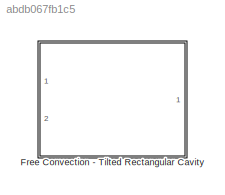
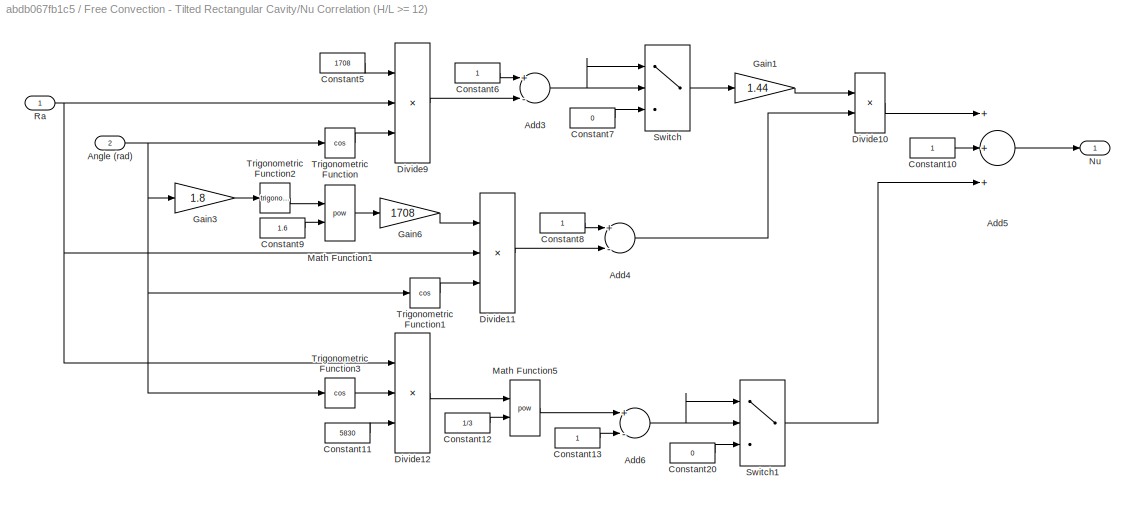
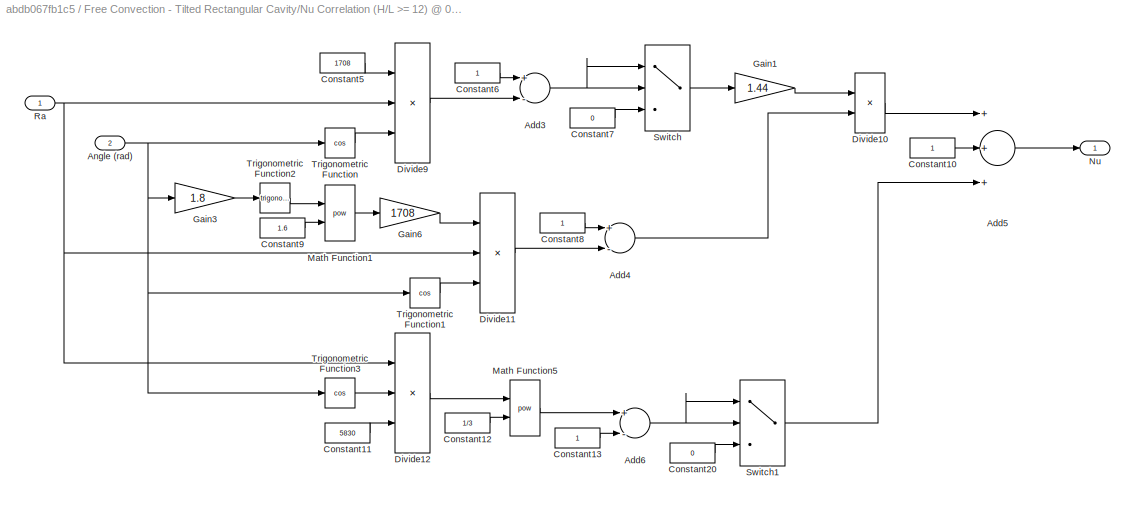
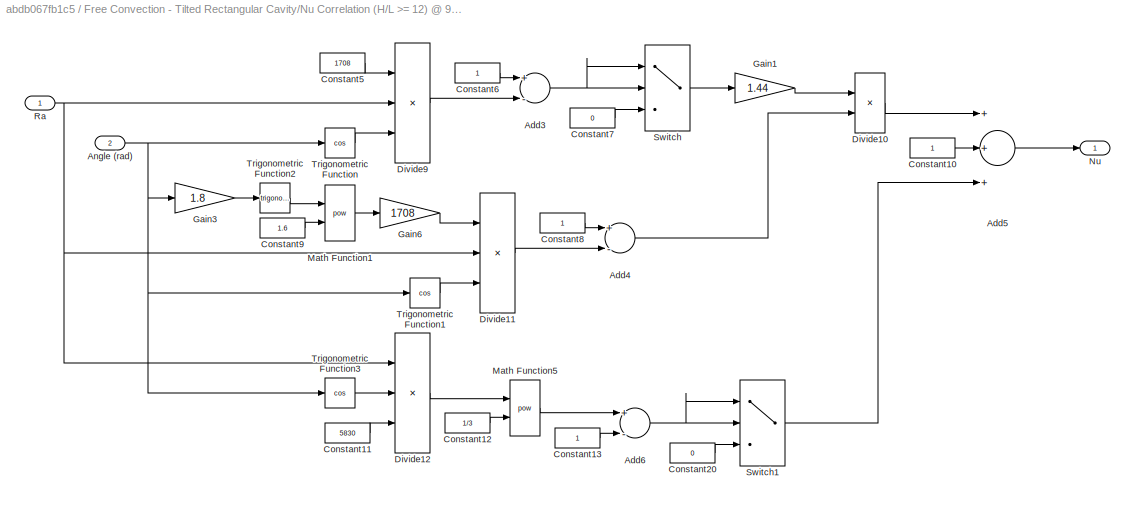
MODEL slx_abdb067fb1c5
KIND library
CONFIG AbsTol = auto
CONFIG FixedStep = auto
CONFIG MaxStep = auto
CONFIG MinStep = auto
CONFIG RelTol = 1e-3
CONFIG SampleTimeConstraint = Unconstrained
CONFIG Solver = ode45
CONFIG SolverMode = Auto
CONFIG SolverName = ode45
CONFIG StartTime = 0.0
CONFIG StopTime = 10.0
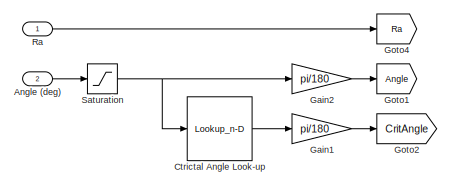
[diagram: Free Convection - Tilted Rectangular Cavity - part 1/2, top left region]
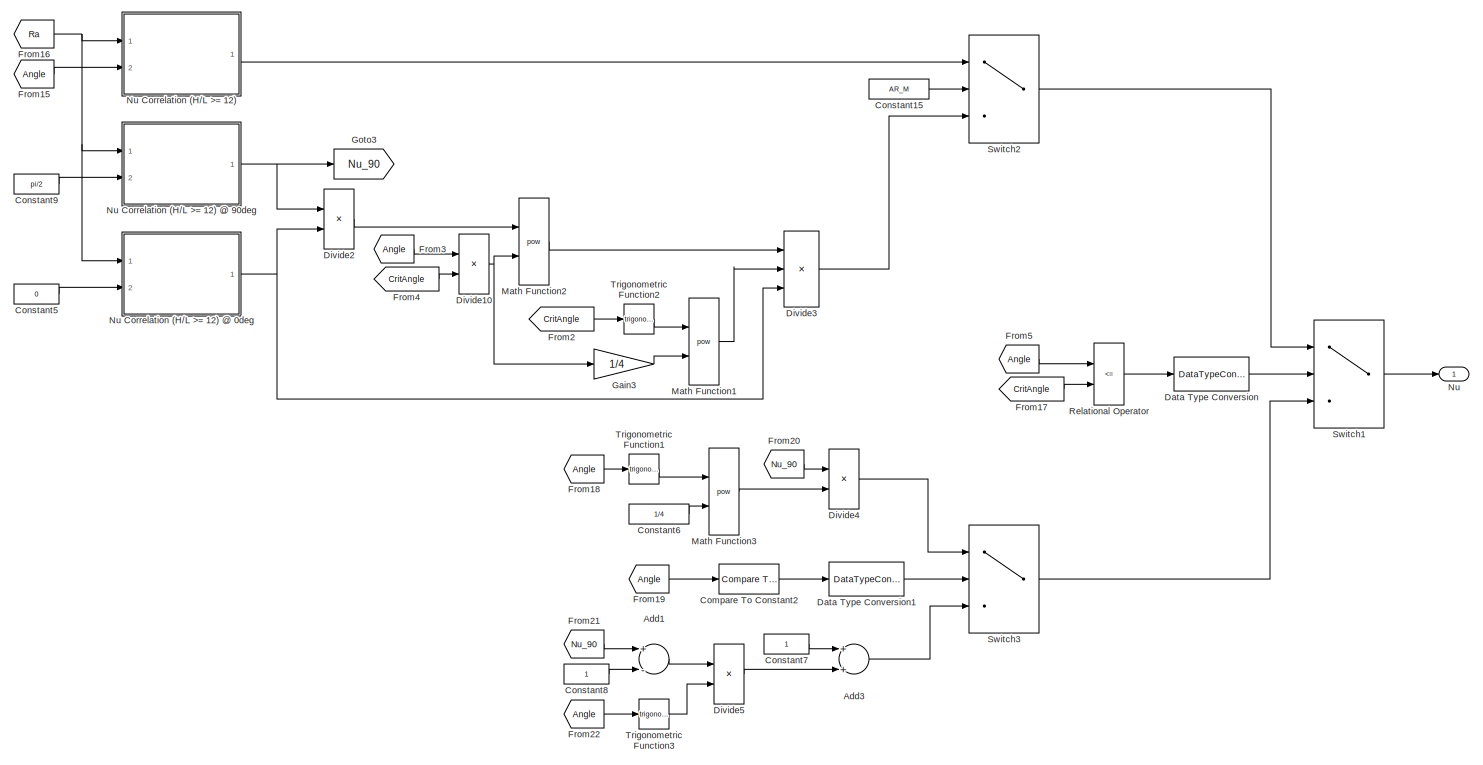
[diagram: Free Convection - Tilted Rectangular Cavity - part 2/2, most of the canvas]
BLOCK [SubSystem] Free Convection - Tilted Rectangular Cavity
  Ports = [2, 1]
  RequestExecContextInheritance = off
BLOCK [Sum] Free Convection - Tilted Rectangular Cavity/Add1
  InputSameDT = off
  Inputs = +-
  OutDataTypeStr = Inherit: Inherit via internal rule
  Ports = [2, 1]
  SaturateOnIntegerOverflow = off
BLOCK [Sum] Free Convection - Tilted Rectangular Cavity/Add3
  InputSameDT = off
  OutDataTypeStr = Inherit: Inherit via internal rule
  Ports = [2, 1]
  SaturateOnIntegerOverflow = off
BLOCK [Inport] Free Convection - Tilted Rectangular Cavity/Angle (deg)
  IconDisplay = Port number
  Port = 2
BLOCK [Reference] Free Convection - Tilted Rectangular Cavity/Compare To Constant2  REF=simulink/Logic and Bit
Operations/Compare
To Constant
  OutDataTypeStr = boolean
  Ports = [1, 1]
  SourceBlock = simulink/Logic and Bit\nOperations/Compare\nTo Constant
  SourceType = Compare To Constant
  ZeroCross = on
  const = 90*pi/180
  relop = <=
BLOCK [Constant] Free Convection - Tilted Rectangular Cavity/Constant15
  Value = AR_M
BLOCK [Constant] Free Convection - Tilted Rectangular Cavity/Constant5
  Value = 0
BLOCK [Constant] Free Convection - Tilted Rectangular Cavity/Constant6
  Value = 1/4
BLOCK [Constant] Free Convection - Tilted Rectangular Cavity/Constant7
BLOCK [Constant] Free Convection - Tilted Rectangular Cavity/Constant8
BLOCK [Constant] Free Convection - Tilted Rectangular Cavity/Constant9
  Value = pi/2
BLOCK [Lookup_n-D] Free Convection - Tilted Rectangular Cavity/Ctrictal Angle Look-up
  BreakpointsForDimension1 = [1 3 6 12 15 20]
  InternalRulePriority = Speed
  NumberOfTableDimensions = 1
  Ports = [1, 1]
  RndMeth = Simplest
  Table = [25 53 60 67 70 70]
BLOCK [DataTypeConversion] Free Convection - Tilted Rectangular Cavity/Data Type Conversion
  OutDataTypeStr = double
  RndMeth = Floor
  SaturateOnIntegerOverflow = off
BLOCK [DataTypeConversion] Free Convection - Tilted Rectangular Cavity/Data Type Conversion1
  OutDataTypeStr = double
  RndMeth = Floor
  SaturateOnIntegerOverflow = off
BLOCK [Product] Free Convection - Tilted Rectangular Cavity/Divide10
  InputSameDT = off
  Inputs = */
  OutDataTypeStr = Inherit: Inherit via internal rule
  Ports = [2, 1]
  RndMeth = Floor
  SaturateOnIntegerOverflow = off
BLOCK [Product] Free Convection - Tilted Rectangular Cavity/Divide2
  InputSameDT = off
  Inputs = */
  OutDataTypeStr = Inherit: Inherit via internal rule
  Ports = [2, 1]
  RndMeth = Floor
  SaturateOnIntegerOverflow = off
BLOCK [Product] Free Convection - Tilted Rectangular Cavity/Divide3
  InputSameDT = off
  Inputs = ***
  OutDataTypeStr = Inherit: Inherit via internal rule
  Ports = [3, 1]
  RndMeth = Floor
  SaturateOnIntegerOverflow = off
BLOCK [Product] Free Convection - Tilted Rectangular Cavity/Divide4
  InputSameDT = off
  Inputs = **
  OutDataTypeStr = Inherit: Inherit via internal rule
  Ports = [2, 1]
  RndMeth = Floor
  SaturateOnIntegerOverflow = off
BLOCK [Product] Free Convection - Tilted Rectangular Cavity/Divide5
  InputSameDT = off
  Inputs = **
  OutDataTypeStr = Inherit: Inherit via internal rule
  Ports = [2, 1]
  RndMeth = Floor
  SaturateOnIntegerOverflow = off
BLOCK [From] Free Convection - Tilted Rectangular Cavity/From15
  GotoTag = Angle
BLOCK [From] Free Convection - Tilted Rectangular Cavity/From16
  GotoTag = Ra
BLOCK [From] Free Convection - Tilted Rectangular Cavity/From17
  GotoTag = CritAngle
BLOCK [From] Free Convection - Tilted Rectangular Cavity/From18
  GotoTag = Angle
BLOCK [From] Free Convection - Tilted Rectangular Cavity/From19
  GotoTag = Angle
BLOCK [From] Free Convection - Tilted Rectangular Cavity/From2
  GotoTag = CritAngle
BLOCK [From] Free Convection - Tilted Rectangular Cavity/From20
  GotoTag = Nu_90
BLOCK [From] Free Convection - Tilted Rectangular Cavity/From21
  GotoTag = Nu_90
BLOCK [From] Free Convection - Tilted Rectangular Cavity/From22
  GotoTag = Angle
BLOCK [From] Free Convection - Tilted Rectangular Cavity/From3
  GotoTag = Angle
BLOCK [From] Free Convection - Tilted Rectangular Cavity/From4
  GotoTag = CritAngle
BLOCK [From] Free Convection - Tilted Rectangular Cavity/From5
  GotoTag = Angle
BLOCK [Gain] Free Convection - Tilted Rectangular Cavity/Gain1
  Gain = pi/180
  OutDataTypeStr = Inherit: Inherit via internal rule
  ParamDataTypeStr = Inherit: Inherit via internal rule
  SaturateOnIntegerOverflow = off
BLOCK [Gain] Free Convection - Tilted Rectangular Cavity/Gain2
  Gain = pi/180
  OutDataTypeStr = Inherit: Inherit via internal rule
  ParamDataTypeStr = Inherit: Inherit via internal rule
  SaturateOnIntegerOverflow = off
BLOCK [Gain] Free Convection - Tilted Rectangular Cavity/Gain3
  Gain = 1/4
  OutDataTypeStr = Inherit: Inherit via internal rule
  ParamDataTypeStr = Inherit: Inherit via internal rule
  SaturateOnIntegerOverflow = off
BLOCK [Goto] Free Convection - Tilted Rectangular Cavity/Goto1
  GotoTag = Angle
BLOCK [Goto] Free Convection - Tilted Rectangular Cavity/Goto2
  GotoTag = CritAngle
BLOCK [Goto] Free Convection - Tilted Rectangular Cavity/Goto3
  GotoTag = Nu_90
BLOCK [Goto] Free Convection - Tilted Rectangular Cavity/Goto4
  GotoTag = Ra
BLOCK [Math] Free Convection - Tilted Rectangular Cavity/Math Function1
  Operator = pow
  Ports = [2, 1]
BLOCK [Math] Free Convection - Tilted Rectangular Cavity/Math Function2
  Operator = pow
  Ports = [2, 1]
BLOCK [Math] Free Convection - Tilted Rectangular Cavity/Math Function3
  Operator = pow
  Ports = [2, 1]
BLOCK [Outport] Free Convection - Tilted Rectangular Cavity/Nu
  IconDisplay = Port number
BLOCK [SubSystem] Free Convection - Tilted Rectangular Cavity/Nu Correlation (H//L >= 12)
  Ports = [2, 1]
  RequestExecContextInheritance = off
BLOCK [SubSystem] Free Convection - Tilted Rectangular Cavity/Nu Correlation (H//L >= 12) @ 0deg
  Ports = [2, 1]
  RequestExecContextInheritance = off
BLOCK [Sum] Free Convection - Tilted Rectangular Cavity/Nu Correlation (H//L >= 12) @ 0deg/Add3
  InputSameDT = off
  Inputs = +-
  OutDataTypeStr = Inherit: Inherit via internal rule
  Ports = [2, 1]
  SaturateOnIntegerOverflow = off
BLOCK [Sum] Free Convection - Tilted Rectangular Cavity/Nu Correlation (H//L >= 12) @ 0deg/Add4
  InputSameDT = off
  Inputs = +-
  OutDataTypeStr = Inherit: Inherit via internal rule
  Ports = [2, 1]
  SaturateOnIntegerOverflow = off
BLOCK [Sum] Free Convection - Tilted Rectangular Cavity/Nu Correlation (H//L >= 12) @ 0deg/Add5
  InputSameDT = off
  Inputs = +++
  OutDataTypeStr = Inherit: Inherit via internal rule
  Ports = [3, 1]
  SaturateOnIntegerOverflow = off
BLOCK [Sum] Free Convection - Tilted Rectangular Cavity/Nu Correlation (H//L >= 12) @ 0deg/Add6
  InputSameDT = off
  Inputs = +-
  OutDataTypeStr = Inherit: Inherit via internal rule
  Ports = [2, 1]
  SaturateOnIntegerOverflow = off
BLOCK [Inport] Free Convection - Tilted Rectangular Cavity/Nu Correlation (H//L >= 12) @ 0deg/Angle (rad)
  IconDisplay = Port number
  Port = 2
BLOCK [Constant] Free Convection - Tilted Rectangular Cavity/Nu Correlation (H//L >= 12) @ 0deg/Constant10
BLOCK [Constant] Free Convection - Tilted Rectangular Cavity/Nu Correlation (H//L >= 12) @ 0deg/Constant11
  Value = 5830
BLOCK [Constant] Free Convection - Tilted Rectangular Cavity/Nu Correlation (H//L >= 12) @ 0deg/Constant12
  Value = 1/3
BLOCK [Constant] Free Convection - Tilted Rectangular Cavity/Nu Correlation (H//L >= 12) @ 0deg/Constant13
BLOCK [Constant] Free Convection - Tilted Rectangular Cavity/Nu Correlation (H//L >= 12) @ 0deg/Constant20
  Value = 0
BLOCK [Constant] Free Convection - Tilted Rectangular Cavity/Nu Correlation (H//L >= 12) @ 0deg/Constant5
  Value = 1708
BLOCK [Constant] Free Convection - Tilted Rectangular Cavity/Nu Correlation (H//L >= 12) @ 0deg/Constant6
BLOCK [Constant] Free Convection - Tilted Rectangular Cavity/Nu Correlation (H//L >= 12) @ 0deg/Constant7
  Value = 0
BLOCK [Constant] Free Convection - Tilted Rectangular Cavity/Nu Correlation (H//L >= 12) @ 0deg/Constant8
BLOCK [Constant] Free Convection - Tilted Rectangular Cavity/Nu Correlation (H//L >= 12) @ 0deg/Constant9
  Value = 1.6
BLOCK [Product] Free Convection - Tilted Rectangular Cavity/Nu Correlation (H//L >= 12) @ 0deg/Divide10
  InputSameDT = off
  Inputs = **
  OutDataTypeStr = Inherit: Inherit via internal rule
  Ports = [2, 1]
  RndMeth = Floor
  SaturateOnIntegerOverflow = off
BLOCK [Product] Free Convection - Tilted Rectangular Cavity/Nu Correlation (H//L >= 12) @ 0deg/Divide11
  InputSameDT = off
  Inputs = *//
  OutDataTypeStr = Inherit: Inherit via internal rule
  Ports = [3, 1]
  RndMeth = Floor
  SaturateOnIntegerOverflow = off
BLOCK [Product] Free Convection - Tilted Rectangular Cavity/Nu Correlation (H//L >= 12) @ 0deg/Divide12
  InputSameDT = off
  Inputs = **/
  OutDataTypeStr = Inherit: Inherit via internal rule
  Ports = [3, 1]
  RndMeth = Floor
  SaturateOnIntegerOverflow = off
BLOCK [Product] Free Convection - Tilted Rectangular Cavity/Nu Correlation (H//L >= 12) @ 0deg/Divide9
  InputSameDT = off
  Inputs = *//
  OutDataTypeStr = Inherit: Inherit via internal rule
  Ports = [3, 1]
  RndMeth = Floor
  SaturateOnIntegerOverflow = off
BLOCK [Gain] Free Convection - Tilted Rectangular Cavity/Nu Correlation (H//L >= 12) @ 0deg/Gain1
  Gain = 1.44
  OutDataTypeStr = Inherit: Inherit via internal rule
  ParamDataTypeStr = Inherit: Inherit via internal rule
  SaturateOnIntegerOverflow = off
BLOCK [Gain] Free Convection - Tilted Rectangular Cavity/Nu Correlation (H//L >= 12) @ 0deg/Gain3
  Gain = 1.8
  OutDataTypeStr = Inherit: Inherit via internal rule
  ParamDataTypeStr = Inherit: Inherit via internal rule
  SaturateOnIntegerOverflow = off
BLOCK [Gain] Free Convection - Tilted Rectangular Cavity/Nu Correlation (H//L >= 12) @ 0deg/Gain6
  Gain = 1708
  OutDataTypeStr = Inherit: Inherit via internal rule
  ParamDataTypeStr = Inherit: Inherit via internal rule
  SaturateOnIntegerOverflow = off
BLOCK [Math] Free Convection - Tilted Rectangular Cavity/Nu Correlation (H//L >= 12) @ 0deg/Math Function1
  Operator = pow
  Ports = [2, 1]
BLOCK [Math] Free Convection - Tilted Rectangular Cavity/Nu Correlation (H//L >= 12) @ 0deg/Math Function5
  Operator = pow
  Ports = [2, 1]
BLOCK [Outport] Free Convection - Tilted Rectangular Cavity/Nu Correlation (H//L >= 12) @ 0deg/Nu
  IconDisplay = Port number
BLOCK [Inport] Free Convection - Tilted Rectangular Cavity/Nu Correlation (H//L >= 12) @ 0deg/Ra
  IconDisplay = Port number
BLOCK [Switch] Free Convection - Tilted Rectangular Cavity/Nu Correlation (H//L >= 12) @ 0deg/Switch
  Criteria = u2 > Threshold
  InputSameDT = off
  SaturateOnIntegerOverflow = off
BLOCK [Switch] Free Convection - Tilted Rectangular Cavity/Nu Correlation (H//L >= 12) @ 0deg/Switch1
  Criteria = u2 > Threshold
  InputSameDT = off
  SaturateOnIntegerOverflow = off
BLOCK [Trigonometry] Free Convection - Tilted Rectangular Cavity/Nu Correlation (H//L >= 12) @ 0deg/Trigonometric Function
  Operator = cos
  Ports = [1, 1]
BLOCK [Trigonometry] Free Convection - Tilted Rectangular Cavity/Nu Correlation (H//L >= 12) @ 0deg/Trigonometric Function1
  Operator = cos
  Ports = [1, 1]
BLOCK [Trigonometry] Free Convection - Tilted Rectangular Cavity/Nu Correlation (H//L >= 12) @ 0deg/Trigonometric Function2
  Ports = [1, 1]
BLOCK [Trigonometry] Free Convection - Tilted Rectangular Cavity/Nu Correlation (H//L >= 12) @ 0deg/Trigonometric Function3
  Operator = cos
  Ports = [1, 1]
BLOCK [SubSystem] Free Convection - Tilted Rectangular Cavity/Nu Correlation (H//L >= 12) @ 90deg
  Ports = [2, 1]
  RequestExecContextInheritance = off
BLOCK [Sum] Free Convection - Tilted Rectangular Cavity/Nu Correlation (H//L >= 12) @ 90deg/Add3
  InputSameDT = off
  Inputs = +-
  OutDataTypeStr = Inherit: Inherit via internal rule
  Ports = [2, 1]
  SaturateOnIntegerOverflow = off
BLOCK [Sum] Free Convection - Tilted Rectangular Cavity/Nu Correlation (H//L >= 12) @ 90deg/Add4
  InputSameDT = off
  Inputs = +-
  OutDataTypeStr = Inherit: Inherit via internal rule
  Ports = [2, 1]
  SaturateOnIntegerOverflow = off
BLOCK [Sum] Free Convection - Tilted Rectangular Cavity/Nu Correlation (H//L >= 12) @ 90deg/Add5
  InputSameDT = off
  Inputs = +++
  OutDataTypeStr = Inherit: Inherit via internal rule
  Ports = [3, 1]
  SaturateOnIntegerOverflow = off
BLOCK [Sum] Free Convection - Tilted Rectangular Cavity/Nu Correlation (H//L >= 12) @ 90deg/Add6
  InputSameDT = off
  Inputs = +-
  OutDataTypeStr = Inherit: Inherit via internal rule
  Ports = [2, 1]
  SaturateOnIntegerOverflow = off
BLOCK [Inport] Free Convection - Tilted Rectangular Cavity/Nu Correlation (H//L >= 12) @ 90deg/Angle (rad)
  IconDisplay = Port number
  Port = 2
BLOCK [Constant] Free Convection - Tilted Rectangular Cavity/Nu Correlation (H//L >= 12) @ 90deg/Constant10
BLOCK [Constant] Free Convection - Tilted Rectangular Cavity/Nu Correlation (H//L >= 12) @ 90deg/Constant11
  Value = 5830
BLOCK [Constant] Free Convection - Tilted Rectangular Cavity/Nu Correlation (H//L >= 12) @ 90deg/Constant12
  Value = 1/3
BLOCK [Constant] Free Convection - Tilted Rectangular Cavity/Nu Correlation (H//L >= 12) @ 90deg/Constant13
BLOCK [Constant] Free Convection - Tilted Rectangular Cavity/Nu Correlation (H//L >= 12) @ 90deg/Constant20
  Value = 0
BLOCK [Constant] Free Convection - Tilted Rectangular Cavity/Nu Correlation (H//L >= 12) @ 90deg/Constant5
  Value = 1708
BLOCK [Constant] Free Convection - Tilted Rectangular Cavity/Nu Correlation (H//L >= 12) @ 90deg/Constant6
BLOCK [Constant] Free Convection - Tilted Rectangular Cavity/Nu Correlation (H//L >= 12) @ 90deg/Constant7
  Value = 0
BLOCK [Constant] Free Convection - Tilted Rectangular Cavity/Nu Correlation (H//L >= 12) @ 90deg/Constant8
BLOCK [Constant] Free Convection - Tilted Rectangular Cavity/Nu Correlation (H//L >= 12) @ 90deg/Constant9
  Value = 1.6
BLOCK [Product] Free Convection - Tilted Rectangular Cavity/Nu Correlation (H//L >= 12) @ 90deg/Divide10
  InputSameDT = off
  Inputs = **
  OutDataTypeStr = Inherit: Inherit via internal rule
  Ports = [2, 1]
  RndMeth = Floor
  SaturateOnIntegerOverflow = off
BLOCK [Product] Free Convection - Tilted Rectangular Cavity/Nu Correlation (H//L >= 12) @ 90deg/Divide11
  InputSameDT = off
  Inputs = *//
  OutDataTypeStr = Inherit: Inherit via internal rule
  Ports = [3, 1]
  RndMeth = Floor
  SaturateOnIntegerOverflow = off
BLOCK [Product] Free Convection - Tilted Rectangular Cavity/Nu Correlation (H//L >= 12) @ 90deg/Divide12
  InputSameDT = off
  Inputs = **/
  OutDataTypeStr = Inherit: Inherit via internal rule
  Ports = [3, 1]
  RndMeth = Floor
  SaturateOnIntegerOverflow = off
BLOCK [Product] Free Convection - Tilted Rectangular Cavity/Nu Correlation (H//L >= 12) @ 90deg/Divide9
  InputSameDT = off
  Inputs = *//
  OutDataTypeStr = Inherit: Inherit via internal rule
  Ports = [3, 1]
  RndMeth = Floor
  SaturateOnIntegerOverflow = off
BLOCK [Gain] Free Convection - Tilted Rectangular Cavity/Nu Correlation (H//L >= 12) @ 90deg/Gain1
  Gain = 1.44
  OutDataTypeStr = Inherit: Inherit via internal rule
  ParamDataTypeStr = Inherit: Inherit via internal rule
  SaturateOnIntegerOverflow = off
BLOCK [Gain] Free Convection - Tilted Rectangular Cavity/Nu Correlation (H//L >= 12) @ 90deg/Gain3
  Gain = 1.8
  OutDataTypeStr = Inherit: Inherit via internal rule
  ParamDataTypeStr = Inherit: Inherit via internal rule
  SaturateOnIntegerOverflow = off
BLOCK [Gain] Free Convection - Tilted Rectangular Cavity/Nu Correlation (H//L >= 12) @ 90deg/Gain6
  Gain = 1708
  OutDataTypeStr = Inherit: Inherit via internal rule
  ParamDataTypeStr = Inherit: Inherit via internal rule
  SaturateOnIntegerOverflow = off
BLOCK [Math] Free Convection - Tilted Rectangular Cavity/Nu Correlation (H//L >= 12) @ 90deg/Math Function1
  Operator = pow
  Ports = [2, 1]
BLOCK [Math] Free Convection - Tilted Rectangular Cavity/Nu Correlation (H//L >= 12) @ 90deg/Math Function5
  Operator = pow
  Ports = [2, 1]
BLOCK [Outport] Free Convection - Tilted Rectangular Cavity/Nu Correlation (H//L >= 12) @ 90deg/Nu
  IconDisplay = Port number
BLOCK [Inport] Free Convection - Tilted Rectangular Cavity/Nu Correlation (H//L >= 12) @ 90deg/Ra
  IconDisplay = Port number
BLOCK [Switch] Free Convection - Tilted Rectangular Cavity/Nu Correlation (H//L >= 12) @ 90deg/Switch
  Criteria = u2 > Threshold
  InputSameDT = off
  SaturateOnIntegerOverflow = off
BLOCK [Switch] Free Convection - Tilted Rectangular Cavity/Nu Correlation (H//L >= 12) @ 90deg/Switch1
  Criteria = u2 > Threshold
  InputSameDT = off
  SaturateOnIntegerOverflow = off
BLOCK [Trigonometry] Free Convection - Tilted Rectangular Cavity/Nu Correlation (H//L >= 12) @ 90deg/Trigonometric Function
  Operator = cos
  Ports = [1, 1]
BLOCK [Trigonometry] Free Convection - Tilted Rectangular Cavity/Nu Correlation (H//L >= 12) @ 90deg/Trigonometric Function1
  Operator = cos
  Ports = [1, 1]
BLOCK [Trigonometry] Free Convection - Tilted Rectangular Cavity/Nu Correlation (H//L >= 12) @ 90deg/Trigonometric Function2
  Ports = [1, 1]
BLOCK [Trigonometry] Free Convection - Tilted Rectangular Cavity/Nu Correlation (H//L >= 12) @ 90deg/Trigonometric Function3
  Operator = cos
  Ports = [1, 1]
BLOCK [Sum] Free Convection - Tilted Rectangular Cavity/Nu Correlation (H//L >= 12)/Add3
  InputSameDT = off
  Inputs = +-
  OutDataTypeStr = Inherit: Inherit via internal rule
  Ports = [2, 1]
  SaturateOnIntegerOverflow = off
BLOCK [Sum] Free Convection - Tilted Rectangular Cavity/Nu Correlation (H//L >= 12)/Add4
  InputSameDT = off
  Inputs = +-
  OutDataTypeStr = Inherit: Inherit via internal rule
  Ports = [2, 1]
  SaturateOnIntegerOverflow = off
BLOCK [Sum] Free Convection - Tilted Rectangular Cavity/Nu Correlation (H//L >= 12)/Add5
  InputSameDT = off
  Inputs = +++
  OutDataTypeStr = Inherit: Inherit via internal rule
  Ports = [3, 1]
  SaturateOnIntegerOverflow = off
BLOCK [Sum] Free Convection - Tilted Rectangular Cavity/Nu Correlation (H//L >= 12)/Add6
  InputSameDT = off
  Inputs = +-
  OutDataTypeStr = Inherit: Inherit via internal rule
  Ports = [2, 1]
  SaturateOnIntegerOverflow = off
BLOCK [Inport] Free Convection - Tilted Rectangular Cavity/Nu Correlation (H//L >= 12)/Angle (rad)
  IconDisplay = Port number
  Port = 2
BLOCK [Constant] Free Convection - Tilted Rectangular Cavity/Nu Correlation (H//L >= 12)/Constant10
BLOCK [Constant] Free Convection - Tilted Rectangular Cavity/Nu Correlation (H//L >= 12)/Constant11
  Value = 5830
BLOCK [Constant] Free Convection - Tilted Rectangular Cavity/Nu Correlation (H//L >= 12)/Constant12
  Value = 1/3
BLOCK [Constant] Free Convection - Tilted Rectangular Cavity/Nu Correlation (H//L >= 12)/Constant13
BLOCK [Constant] Free Convection - Tilted Rectangular Cavity/Nu Correlation (H//L >= 12)/Constant20
  Value = 0
BLOCK [Constant] Free Convection - Tilted Rectangular Cavity/Nu Correlation (H//L >= 12)/Constant5
  Value = 1708
BLOCK [Constant] Free Convection - Tilted Rectangular Cavity/Nu Correlation (H//L >= 12)/Constant6
BLOCK [Constant] Free Convection - Tilted Rectangular Cavity/Nu Correlation (H//L >= 12)/Constant7
  Value = 0
BLOCK [Constant] Free Convection - Tilted Rectangular Cavity/Nu Correlation (H//L >= 12)/Constant8
BLOCK [Constant] Free Convection - Tilted Rectangular Cavity/Nu Correlation (H//L >= 12)/Constant9
  Value = 1.6
BLOCK [Product] Free Convection - Tilted Rectangular Cavity/Nu Correlation (H//L >= 12)/Divide10
  InputSameDT = off
  Inputs = **
  OutDataTypeStr = Inherit: Inherit via internal rule
  Ports = [2, 1]
  RndMeth = Floor
  SaturateOnIntegerOverflow = off
BLOCK [Product] Free Convection - Tilted Rectangular Cavity/Nu Correlation (H//L >= 12)/Divide11
  InputSameDT = off
  Inputs = *//
  OutDataTypeStr = Inherit: Inherit via internal rule
  Ports = [3, 1]
  RndMeth = Floor
  SaturateOnIntegerOverflow = off
BLOCK [Product] Free Convection - Tilted Rectangular Cavity/Nu Correlation (H//L >= 12)/Divide12
  InputSameDT = off
  Inputs = **/
  OutDataTypeStr = Inherit: Inherit via internal rule
  Ports = [3, 1]
  RndMeth = Floor
  SaturateOnIntegerOverflow = off
BLOCK [Product] Free Convection - Tilted Rectangular Cavity/Nu Correlation (H//L >= 12)/Divide9
  InputSameDT = off
  Inputs = *//
  OutDataTypeStr = Inherit: Inherit via internal rule
  Ports = [3, 1]
  RndMeth = Floor
  SaturateOnIntegerOverflow = off
BLOCK [Gain] Free Convection - Tilted Rectangular Cavity/Nu Correlation (H//L >= 12)/Gain1
  Gain = 1.44
  OutDataTypeStr = Inherit: Inherit via internal rule
  ParamDataTypeStr = Inherit: Inherit via internal rule
  SaturateOnIntegerOverflow = off
BLOCK [Gain] Free Convection - Tilted Rectangular Cavity/Nu Correlation (H//L >= 12)/Gain3
  Gain = 1.8
  OutDataTypeStr = Inherit: Inherit via internal rule
  ParamDataTypeStr = Inherit: Inherit via internal rule
  SaturateOnIntegerOverflow = off
BLOCK [Gain] Free Convection - Tilted Rectangular Cavity/Nu Correlation (H//L >= 12)/Gain6
  Gain = 1708
  OutDataTypeStr = Inherit: Inherit via internal rule
  ParamDataTypeStr = Inherit: Inherit via internal rule
  SaturateOnIntegerOverflow = off
BLOCK [Math] Free Convection - Tilted Rectangular Cavity/Nu Correlation (H//L >= 12)/Math Function1
  Operator = pow
  Ports = [2, 1]
BLOCK [Math] Free Convection - Tilted Rectangular Cavity/Nu Correlation (H//L >= 12)/Math Function5
  Operator = pow
  Ports = [2, 1]
BLOCK [Outport] Free Convection - Tilted Rectangular Cavity/Nu Correlation (H//L >= 12)/Nu
  IconDisplay = Port number
BLOCK [Inport] Free Convection - Tilted Rectangular Cavity/Nu Correlation (H//L >= 12)/Ra
  IconDisplay = Port number
BLOCK [Switch] Free Convection - Tilted Rectangular Cavity/Nu Correlation (H//L >= 12)/Switch
  Criteria = u2 > Threshold
  InputSameDT = off
  SaturateOnIntegerOverflow = off
BLOCK [Switch] Free Convection - Tilted Rectangular Cavity/Nu Correlation (H//L >= 12)/Switch1
  Criteria = u2 > Threshold
  InputSameDT = off
  SaturateOnIntegerOverflow = off
BLOCK [Trigonometry] Free Convection - Tilted Rectangular Cavity/Nu Correlation (H//L >= 12)/Trigonometric Function
  Operator = cos
  Ports = [1, 1]
BLOCK [Trigonometry] Free Convection - Tilted Rectangular Cavity/Nu Correlation (H//L >= 12)/Trigonometric Function1
  Operator = cos
  Ports = [1, 1]
BLOCK [Trigonometry] Free Convection - Tilted Rectangular Cavity/Nu Correlation (H//L >= 12)/Trigonometric Function2
  Ports = [1, 1]
BLOCK [Trigonometry] Free Convection - Tilted Rectangular Cavity/Nu Correlation (H//L >= 12)/Trigonometric Function3
  Operator = cos
  Ports = [1, 1]
BLOCK [Inport] Free Convection - Tilted Rectangular Cavity/Ra
  IconDisplay = Port number
BLOCK [RelationalOperator] Free Convection - Tilted Rectangular Cavity/Relational Operator
  InputSameDT = off
  Operator = <=
  OutDataTypeStr = boolean
  Ports = [2, 1]
BLOCK [Saturate] Free Convection - Tilted Rectangular Cavity/Saturation
  InputPortMap = u0
  LowerLimit = 0
  Ports = [1, 1]
  UpperLimit = 180
BLOCK [Switch] Free Convection - Tilted Rectangular Cavity/Switch1
  Criteria = u2 > Threshold
  InputSameDT = off
  SaturateOnIntegerOverflow = off
BLOCK [Switch] Free Convection - Tilted Rectangular Cavity/Switch2
  InputSameDT = off
  SaturateOnIntegerOverflow = off
  Threshold = 12
BLOCK [Switch] Free Convection - Tilted Rectangular Cavity/Switch3
  Criteria = u2 > Threshold
  InputSameDT = off
  SaturateOnIntegerOverflow = off
BLOCK [Trigonometry] Free Convection - Tilted Rectangular Cavity/Trigonometric Function1
  Ports = [1, 1]
BLOCK [Trigonometry] Free Convection - Tilted Rectangular Cavity/Trigonometric Function2
  Ports = [1, 1]
BLOCK [Trigonometry] Free Convection - Tilted Rectangular Cavity/Trigonometric Function3
  Ports = [1, 1]
LINE Free Convection - Tilted Rectangular Cavity/Add1:1 -> Free Convection - Tilted Rectangular Cavity/Divide5:1
LINE Free Convection - Tilted Rectangular Cavity/Add3:1 -> Free Convection - Tilted Rectangular Cavity/Switch3:3
LINE Free Convection - Tilted Rectangular Cavity/Angle (deg):1 -> Free Convection - Tilted Rectangular Cavity/Saturation:1
LINE Free Convection - Tilted Rectangular Cavity/Compare To Constant2:1 -> Free Convection - Tilted Rectangular Cavity/Data Type Conversion1:1
LINE Free Convection - Tilted Rectangular Cavity/Constant15:1 -> Free Convection - Tilted Rectangular Cavity/Switch2:2
LINE Free Convection - Tilted Rectangular Cavity/Constant5:1 -> Free Convection - Tilted Rectangular Cavity/Nu Correlation (H//L >= 12) @ 0deg:2
LINE Free Convection - Tilted Rectangular Cavity/Constant6:1 -> Free Convection - Tilted Rectangular Cavity/Math Function3:2
LINE Free Convection - Tilted Rectangular Cavity/Constant7:1 -> Free Convection - Tilted Rectangular Cavity/Add3:1
LINE Free Convection - Tilted Rectangular Cavity/Constant8:1 -> Free Convection - Tilted Rectangular Cavity/Add1:2
LINE Free Convection - Tilted Rectangular Cavity/Constant9:1 -> Free Convection - Tilted Rectangular Cavity/Nu Correlation (H//L >= 12) @ 90deg:2
LINE Free Convection - Tilted Rectangular Cavity/Ctrictal Angle Look-up:1 -> Free Convection - Tilted Rectangular Cavity/Gain1:1
LINE Free Convection - Tilted Rectangular Cavity/Data Type Conversion1:1 -> Free Convection - Tilted Rectangular Cavity/Switch3:2
LINE Free Convection - Tilted Rectangular Cavity/Data Type Conversion:1 -> Free Convection - Tilted Rectangular Cavity/Switch1:2
NET Free Convection - Tilted Rectangular Cavity/Divide10:1 -> Free Convection - Tilted Rectangular Cavity/Gain3:1, Free Convection - Tilted Rectangular Cavity/Math Function2:2
LINE Free Convection - Tilted Rectangular Cavity/Divide2:1 -> Free Convection - Tilted Rectangular Cavity/Math Function2:1
LINE Free Convection - Tilted Rectangular Cavity/Divide3:1 -> Free Convection - Tilted Rectangular Cavity/Switch2:3
LINE Free Convection - Tilted Rectangular Cavity/Divide4:1 -> Free Convection - Tilted Rectangular Cavity/Switch3:1
LINE Free Convection - Tilted Rectangular Cavity/Divide5:1 -> Free Convection - Tilted Rectangular Cavity/Add3:2
LINE Free Convection - Tilted Rectangular Cavity/From15:1 -> Free Convection - Tilted Rectangular Cavity/Nu Correlation (H//L >= 12):2
NET Free Convection - Tilted Rectangular Cavity/From16:1 -> Free Convection - Tilted Rectangular Cavity/Nu Correlation (H//L >= 12) @ 0deg:1, Free Convection - Tilted Rectangular Cavity/Nu Correlation (H//L >= 12) @ 90deg:1, Free Convection - Tilted Rectangular Cavity/Nu Correlation (H//L >= 12):1
LINE Free Convection - Tilted Rectangular Cavity/From17:1 -> Free Convection - Tilted Rectangular Cavity/Relational Operator:2
LINE Free Convection - Tilted Rectangular Cavity/From18:1 -> Free Convection - Tilted Rectangular Cavity/Trigonometric Function1:1
LINE Free Convection - Tilted Rectangular Cavity/From19:1 -> Free Convection - Tilted Rectangular Cavity/Compare To Constant2:1
LINE Free Convection - Tilted Rectangular Cavity/From20:1 -> Free Convection - Tilted Rectangular Cavity/Divide4:1
LINE Free Convection - Tilted Rectangular Cavity/From21:1 -> Free Convection - Tilted Rectangular Cavity/Add1:1
LINE Free Convection - Tilted Rectangular Cavity/From22:1 -> Free Convection - Tilted Rectangular Cavity/Trigonometric Function3:1
LINE Free Convection - Tilted Rectangular Cavity/From2:1 -> Free Convection - Tilted Rectangular Cavity/Trigonometric Function2:1
LINE Free Convection - Tilted Rectangular Cavity/From3:1 -> Free Convection - Tilted Rectangular Cavity/Divide10:1
LINE Free Convection - Tilted Rectangular Cavity/From4:1 -> Free Convection - Tilted Rectangular Cavity/Divide10:2
LINE Free Convection - Tilted Rectangular Cavity/From5:1 -> Free Convection - Tilted Rectangular Cavity/Relational Operator:1
LINE Free Convection - Tilted Rectangular Cavity/Gain1:1 -> Free Convection - Tilted Rectangular Cavity/Goto2:1
LINE Free Convection - Tilted Rectangular Cavity/Gain2:1 -> Free Convection - Tilted Rectangular Cavity/Goto1:1
LINE Free Convection - Tilted Rectangular Cavity/Gain3:1 -> Free Convection - Tilted Rectangular Cavity/Math Function1:2
LINE Free Convection - Tilted Rectangular Cavity/Math Function1:1 -> Free Convection - Tilted Rectangular Cavity/Divide3:2
LINE Free Convection - Tilted Rectangular Cavity/Math Function2:1 -> Free Convection - Tilted Rectangular Cavity/Divide3:1
LINE Free Convection - Tilted Rectangular Cavity/Math Function3:1 -> Free Convection - Tilted Rectangular Cavity/Divide4:2
NET Free Convection - Tilted Rectangular Cavity/Nu Correlation (H//L >= 12) @ 0deg/Add3:1 -> Free Convection - Tilted Rectangular Cavity/Nu Correlation (H//L >= 12) @ 0deg/Switch:1, Free Convection - Tilted Rectangular Cavity/Nu Correlation (H//L >= 12) @ 0deg/Switch:2
LINE Free Convection - Tilted Rectangular Cavity/Nu Correlation (H//L >= 12) @ 0deg/Add4:1 -> Free Convection - Tilted Rectangular Cavity/Nu Correlation (H//L >= 12) @ 0deg/Divide10:2
LINE Free Convection - Tilted Rectangular Cavity/Nu Correlation (H//L >= 12) @ 0deg/Add5:1 -> Free Convection - Tilted Rectangular Cavity/Nu Correlation (H//L >= 12) @ 0deg/Nu:1
NET Free Convection - Tilted Rectangular Cavity/Nu Correlation (H//L >= 12) @ 0deg/Add6:1 -> Free Convection - Tilted Rectangular Cavity/Nu Correlation (H//L >= 12) @ 0deg/Switch1:1, Free Convection - Tilted Rectangular Cavity/Nu Correlation (H//L >= 12) @ 0deg/Switch1:2
NET Free Convection - Tilted Rectangular Cavity/Nu Correlation (H//L >= 12) @ 0deg/Angle (rad):1 -> Free Convection - Tilted Rectangular Cavity/Nu Correlation (H//L >= 12) @ 0deg/Gain3:1, Free Convection - Tilted Rectangular Cavity/Nu Correlation (H//L >= 12) @ 0deg/Trigonometric Function1:1, Free Convection - Tilted Rectangular Cavity/Nu Correlation (H//L >= 12) @ 0deg/Trigonometric Function3:1, Free Convection - Tilted Rectangular Cavity/Nu Correlation (H//L >= 12) @ 0deg/Trigonometric Function:1
LINE Free Convection - Tilted Rectangular Cavity/Nu Correlation (H//L >= 12) @ 0deg/Constant10:1 -> Free Convection - Tilted Rectangular Cavity/Nu Correlation (H//L >= 12) @ 0deg/Add5:2
LINE Free Convection - Tilted Rectangular Cavity/Nu Correlation (H//L >= 12) @ 0deg/Constant11:1 -> Free Convection - Tilted Rectangular Cavity/Nu Correlation (H//L >= 12) @ 0deg/Divide12:3
LINE Free Convection - Tilted Rectangular Cavity/Nu Correlation (H//L >= 12) @ 0deg/Constant12:1 -> Free Convection - Tilted Rectangular Cavity/Nu Correlation (H//L >= 12) @ 0deg/Math Function5:2
LINE Free Convection - Tilted Rectangular Cavity/Nu Correlation (H//L >= 12) @ 0deg/Constant13:1 -> Free Convection - Tilted Rectangular Cavity/Nu Correlation (H//L >= 12) @ 0deg/Add6:2
LINE Free Convection - Tilted Rectangular Cavity/Nu Correlation (H//L >= 12) @ 0deg/Constant20:1 -> Free Convection - Tilted Rectangular Cavity/Nu Correlation (H//L >= 12) @ 0deg/Switch1:3
LINE Free Convection - Tilted Rectangular Cavity/Nu Correlation (H//L >= 12) @ 0deg/Constant5:1 -> Free Convection - Tilted Rectangular Cavity/Nu Correlation (H//L >= 12) @ 0deg/Divide9:1
LINE Free Convection - Tilted Rectangular Cavity/Nu Correlation (H//L >= 12) @ 0deg/Constant6:1 -> Free Convection - Tilted Rectangular Cavity/Nu Correlation (H//L >= 12) @ 0deg/Add3:1
LINE Free Convection - Tilted Rectangular Cavity/Nu Correlation (H//L >= 12) @ 0deg/Constant7:1 -> Free Convection - Tilted Rectangular Cavity/Nu Correlation (H//L >= 12) @ 0deg/Switch:3
LINE Free Convection - Tilted Rectangular Cavity/Nu Correlation (H//L >= 12) @ 0deg/Constant8:1 -> Free Convection - Tilted Rectangular Cavity/Nu Correlation (H//L >= 12) @ 0deg/Add4:1
LINE Free Convection - Tilted Rectangular Cavity/Nu Correlation (H//L >= 12) @ 0deg/Constant9:1 -> Free Convection - Tilted Rectangular Cavity/Nu Correlation (H//L >= 12) @ 0deg/Math Function1:2
LINE Free Convection - Tilted Rectangular Cavity/Nu Correlation (H//L >= 12) @ 0deg/Divide10:1 -> Free Convection - Tilted Rectangular Cavity/Nu Correlation (H//L >= 12) @ 0deg/Add5:1
LINE Free Convection - Tilted Rectangular Cavity/Nu Correlation (H//L >= 12) @ 0deg/Divide11:1 -> Free Convection - Tilted Rectangular Cavity/Nu Correlation (H//L >= 12) @ 0deg/Add4:2
LINE Free Convection - Tilted Rectangular Cavity/Nu Correlation (H//L >= 12) @ 0deg/Divide12:1 -> Free Convection - Tilted Rectangular Cavity/Nu Correlation (H//L >= 12) @ 0deg/Math Function5:1
LINE Free Convection - Tilted Rectangular Cavity/Nu Correlation (H//L >= 12) @ 0deg/Divide9:1 -> Free Convection - Tilted Rectangular Cavity/Nu Correlation (H//L >= 12) @ 0deg/Add3:2
LINE Free Convection - Tilted Rectangular Cavity/Nu Correlation (H//L >= 12) @ 0deg/Gain1:1 -> Free Convection - Tilted Rectangular Cavity/Nu Correlation (H//L >= 12) @ 0deg/Divide10:1
LINE Free Convection - Tilted Rectangular Cavity/Nu Correlation (H//L >= 12) @ 0deg/Gain3:1 -> Free Convection - Tilted Rectangular Cavity/Nu Correlation (H//L >= 12) @ 0deg/Trigonometric Function2:1
LINE Free Convection - Tilted Rectangular Cavity/Nu Correlation (H//L >= 12) @ 0deg/Gain6:1 -> Free Convection - Tilted Rectangular Cavity/Nu Correlation (H//L >= 12) @ 0deg/Divide11:1
LINE Free Convection - Tilted Rectangular Cavity/Nu Correlation (H//L >= 12) @ 0deg/Math Function1:1 -> Free Convection - Tilted Rectangular Cavity/Nu Correlation (H//L >= 12) @ 0deg/Gain6:1
LINE Free Convection - Tilted Rectangular Cavity/Nu Correlation (H//L >= 12) @ 0deg/Math Function5:1 -> Free Convection - Tilted Rectangular Cavity/Nu Correlation (H//L >= 12) @ 0deg/Add6:1
NET Free Convection - Tilted Rectangular Cavity/Nu Correlation (H//L >= 12) @ 0deg/Ra:1 -> Free Convection - Tilted Rectangular Cavity/Nu Correlation (H//L >= 12) @ 0deg/Divide11:2, Free Convection - Tilted Rectangular Cavity/Nu Correlation (H//L >= 12) @ 0deg/Divide12:1, Free Convection - Tilted Rectangular Cavity/Nu Correlation (H//L >= 12) @ 0deg/Divide9:2
LINE Free Convection - Tilted Rectangular Cavity/Nu Correlation (H//L >= 12) @ 0deg/Switch1:1 -> Free Convection - Tilted Rectangular Cavity/Nu Correlation (H//L >= 12) @ 0deg/Add5:3
LINE Free Convection - Tilted Rectangular Cavity/Nu Correlation (H//L >= 12) @ 0deg/Switch:1 -> Free Convection - Tilted Rectangular Cavity/Nu Correlation (H//L >= 12) @ 0deg/Gain1:1
LINE Free Convection - Tilted Rectangular Cavity/Nu Correlation (H//L >= 12) @ 0deg/Trigonometric Function1:1 -> Free Convection - Tilted Rectangular Cavity/Nu Correlation (H//L >= 12) @ 0deg/Divide11:3
LINE Free Convection - Tilted Rectangular Cavity/Nu Correlation (H//L >= 12) @ 0deg/Trigonometric Function2:1 -> Free Convection - Tilted Rectangular Cavity/Nu Correlation (H//L >= 12) @ 0deg/Math Function1:1
LINE Free Convection - Tilted Rectangular Cavity/Nu Correlation (H//L >= 12) @ 0deg/Trigonometric Function3:1 -> Free Convection - Tilted Rectangular Cavity/Nu Correlation (H//L >= 12) @ 0deg/Divide12:2
LINE Free Convection - Tilted Rectangular Cavity/Nu Correlation (H//L >= 12) @ 0deg/Trigonometric Function:1 -> Free Convection - Tilted Rectangular Cavity/Nu Correlation (H//L >= 12) @ 0deg/Divide9:3
NET Free Convection - Tilted Rectangular Cavity/Nu Correlation (H//L >= 12) @ 0deg:1 -> Free Convection - Tilted Rectangular Cavity/Divide2:2, Free Convection - Tilted Rectangular Cavity/Divide3:3
NET Free Convection - Tilted Rectangular Cavity/Nu Correlation (H//L >= 12) @ 90deg/Add3:1 -> Free Convection - Tilted Rectangular Cavity/Nu Correlation (H//L >= 12) @ 90deg/Switch:1, Free Convection - Tilted Rectangular Cavity/Nu Correlation (H//L >= 12) @ 90deg/Switch:2
LINE Free Convection - Tilted Rectangular Cavity/Nu Correlation (H//L >= 12) @ 90deg/Add4:1 -> Free Convection - Tilted Rectangular Cavity/Nu Correlation (H//L >= 12) @ 90deg/Divide10:2
LINE Free Convection - Tilted Rectangular Cavity/Nu Correlation (H//L >= 12) @ 90deg/Add5:1 -> Free Convection - Tilted Rectangular Cavity/Nu Correlation (H//L >= 12) @ 90deg/Nu:1
NET Free Convection - Tilted Rectangular Cavity/Nu Correlation (H//L >= 12) @ 90deg/Add6:1 -> Free Convection - Tilted Rectangular Cavity/Nu Correlation (H//L >= 12) @ 90deg/Switch1:1, Free Convection - Tilted Rectangular Cavity/Nu Correlation (H//L >= 12) @ 90deg/Switch1:2
NET Free Convection - Tilted Rectangular Cavity/Nu Correlation (H//L >= 12) @ 90deg/Angle (rad):1 -> Free Convection - Tilted Rectangular Cavity/Nu Correlation (H//L >= 12) @ 90deg/Gain3:1, Free Convection - Tilted Rectangular Cavity/Nu Correlation (H//L >= 12) @ 90deg/Trigonometric Function1:1, Free Convection - Tilted Rectangular Cavity/Nu Correlation (H//L >= 12) @ 90deg/Trigonometric Function3:1, Free Convection - Tilted Rectangular Cavity/Nu Correlation (H//L >= 12) @ 90deg/Trigonometric Function:1
LINE Free Convection - Tilted Rectangular Cavity/Nu Correlation (H//L >= 12) @ 90deg/Constant10:1 -> Free Convection - Tilted Rectangular Cavity/Nu Correlation (H//L >= 12) @ 90deg/Add5:2
LINE Free Convection - Tilted Rectangular Cavity/Nu Correlation (H//L >= 12) @ 90deg/Constant11:1 -> Free Convection - Tilted Rectangular Cavity/Nu Correlation (H//L >= 12) @ 90deg/Divide12:3
LINE Free Convection - Tilted Rectangular Cavity/Nu Correlation (H//L >= 12) @ 90deg/Constant12:1 -> Free Convection - Tilted Rectangular Cavity/Nu Correlation (H//L >= 12) @ 90deg/Math Function5:2
LINE Free Convection - Tilted Rectangular Cavity/Nu Correlation (H//L >= 12) @ 90deg/Constant13:1 -> Free Convection - Tilted Rectangular Cavity/Nu Correlation (H//L >= 12) @ 90deg/Add6:2
LINE Free Convection - Tilted Rectangular Cavity/Nu Correlation (H//L >= 12) @ 90deg/Constant20:1 -> Free Convection - Tilted Rectangular Cavity/Nu Correlation (H//L >= 12) @ 90deg/Switch1:3
LINE Free Convection - Tilted Rectangular Cavity/Nu Correlation (H//L >= 12) @ 90deg/Constant5:1 -> Free Convection - Tilted Rectangular Cavity/Nu Correlation (H//L >= 12) @ 90deg/Divide9:1
LINE Free Convection - Tilted Rectangular Cavity/Nu Correlation (H//L >= 12) @ 90deg/Constant6:1 -> Free Convection - Tilted Rectangular Cavity/Nu Correlation (H//L >= 12) @ 90deg/Add3:1
LINE Free Convection - Tilted Rectangular Cavity/Nu Correlation (H//L >= 12) @ 90deg/Constant7:1 -> Free Convection - Tilted Rectangular Cavity/Nu Correlation (H//L >= 12) @ 90deg/Switch:3
LINE Free Convection - Tilted Rectangular Cavity/Nu Correlation (H//L >= 12) @ 90deg/Constant8:1 -> Free Convection - Tilted Rectangular Cavity/Nu Correlation (H//L >= 12) @ 90deg/Add4:1
LINE Free Convection - Tilted Rectangular Cavity/Nu Correlation (H//L >= 12) @ 90deg/Constant9:1 -> Free Convection - Tilted Rectangular Cavity/Nu Correlation (H//L >= 12) @ 90deg/Math Function1:2
LINE Free Convection - Tilted Rectangular Cavity/Nu Correlation (H//L >= 12) @ 90deg/Divide10:1 -> Free Convection - Tilted Rectangular Cavity/Nu Correlation (H//L >= 12) @ 90deg/Add5:1
LINE Free Convection - Tilted Rectangular Cavity/Nu Correlation (H//L >= 12) @ 90deg/Divide11:1 -> Free Convection - Tilted Rectangular Cavity/Nu Correlation (H//L >= 12) @ 90deg/Add4:2
LINE Free Convection - Tilted Rectangular Cavity/Nu Correlation (H//L >= 12) @ 90deg/Divide12:1 -> Free Convection - Tilted Rectangular Cavity/Nu Correlation (H//L >= 12) @ 90deg/Math Function5:1
LINE Free Convection - Tilted Rectangular Cavity/Nu Correlation (H//L >= 12) @ 90deg/Divide9:1 -> Free Convection - Tilted Rectangular Cavity/Nu Correlation (H//L >= 12) @ 90deg/Add3:2
LINE Free Convection - Tilted Rectangular Cavity/Nu Correlation (H//L >= 12) @ 90deg/Gain1:1 -> Free Convection - Tilted Rectangular Cavity/Nu Correlation (H//L >= 12) @ 90deg/Divide10:1
LINE Free Convection - Tilted Rectangular Cavity/Nu Correlation (H//L >= 12) @ 90deg/Gain3:1 -> Free Convection - Tilted Rectangular Cavity/Nu Correlation (H//L >= 12) @ 90deg/Trigonometric Function2:1
LINE Free Convection - Tilted Rectangular Cavity/Nu Correlation (H//L >= 12) @ 90deg/Gain6:1 -> Free Convection - Tilted Rectangular Cavity/Nu Correlation (H//L >= 12) @ 90deg/Divide11:1
LINE Free Convection - Tilted Rectangular Cavity/Nu Correlation (H//L >= 12) @ 90deg/Math Function1:1 -> Free Convection - Tilted Rectangular Cavity/Nu Correlation (H//L >= 12) @ 90deg/Gain6:1
LINE Free Convection - Tilted Rectangular Cavity/Nu Correlation (H//L >= 12) @ 90deg/Math Function5:1 -> Free Convection - Tilted Rectangular Cavity/Nu Correlation (H//L >= 12) @ 90deg/Add6:1
NET Free Convection - Tilted Rectangular Cavity/Nu Correlation (H//L >= 12) @ 90deg/Ra:1 -> Free Convection - Tilted Rectangular Cavity/Nu Correlation (H//L >= 12) @ 90deg/Divide11:2, Free Convection - Tilted Rectangular Cavity/Nu Correlation (H//L >= 12) @ 90deg/Divide12:1, Free Convection - Tilted Rectangular Cavity/Nu Correlation (H//L >= 12) @ 90deg/Divide9:2
LINE Free Convection - Tilted Rectangular Cavity/Nu Correlation (H//L >= 12) @ 90deg/Switch1:1 -> Free Convection - Tilted Rectangular Cavity/Nu Correlation (H//L >= 12) @ 90deg/Add5:3
LINE Free Convection - Tilted Rectangular Cavity/Nu Correlation (H//L >= 12) @ 90deg/Switch:1 -> Free Convection - Tilted Rectangular Cavity/Nu Correlation (H//L >= 12) @ 90deg/Gain1:1
LINE Free Convection - Tilted Rectangular Cavity/Nu Correlation (H//L >= 12) @ 90deg/Trigonometric Function1:1 -> Free Convection - Tilted Rectangular Cavity/Nu Correlation (H//L >= 12) @ 90deg/Divide11:3
LINE Free Convection - Tilted Rectangular Cavity/Nu Correlation (H//L >= 12) @ 90deg/Trigonometric Function2:1 -> Free Convection - Tilted Rectangular Cavity/Nu Correlation (H//L >= 12) @ 90deg/Math Function1:1
LINE Free Convection - Tilted Rectangular Cavity/Nu Correlation (H//L >= 12) @ 90deg/Trigonometric Function3:1 -> Free Convection - Tilted Rectangular Cavity/Nu Correlation (H//L >= 12) @ 90deg/Divide12:2
LINE Free Convection - Tilted Rectangular Cavity/Nu Correlation (H//L >= 12) @ 90deg/Trigonometric Function:1 -> Free Convection - Tilted Rectangular Cavity/Nu Correlation (H//L >= 12) @ 90deg/Divide9:3
NET Free Convection - Tilted Rectangular Cavity/Nu Correlation (H//L >= 12) @ 90deg:1 -> Free Convection - Tilted Rectangular Cavity/Divide2:1, Free Convection - Tilted Rectangular Cavity/Goto3:1
NET Free Convection - Tilted Rectangular Cavity/Nu Correlation (H//L >= 12)/Add3:1 -> Free Convection - Tilted Rectangular Cavity/Nu Correlation (H//L >= 12)/Switch:1, Free Convection - Tilted Rectangular Cavity/Nu Correlation (H//L >= 12)/Switch:2
LINE Free Convection - Tilted Rectangular Cavity/Nu Correlation (H//L >= 12)/Add4:1 -> Free Convection - Tilted Rectangular Cavity/Nu Correlation (H//L >= 12)/Divide10:2
LINE Free Convection - Tilted Rectangular Cavity/Nu Correlation (H//L >= 12)/Add5:1 -> Free Convection - Tilted Rectangular Cavity/Nu Correlation (H//L >= 12)/Nu:1
NET Free Convection - Tilted Rectangular Cavity/Nu Correlation (H//L >= 12)/Add6:1 -> Free Convection - Tilted Rectangular Cavity/Nu Correlation (H//L >= 12)/Switch1:1, Free Convection - Tilted Rectangular Cavity/Nu Correlation (H//L >= 12)/Switch1:2
NET Free Convection - Tilted Rectangular Cavity/Nu Correlation (H//L >= 12)/Angle (rad):1 -> Free Convection - Tilted Rectangular Cavity/Nu Correlation (H//L >= 12)/Gain3:1, Free Convection - Tilted Rectangular Cavity/Nu Correlation (H//L >= 12)/Trigonometric Function1:1, Free Convection - Tilted Rectangular Cavity/Nu Correlation (H//L >= 12)/Trigonometric Function3:1, Free Convection - Tilted Rectangular Cavity/Nu Correlation (H//L >= 12)/Trigonometric Function:1
LINE Free Convection - Tilted Rectangular Cavity/Nu Correlation (H//L >= 12)/Constant10:1 -> Free Convection - Tilted Rectangular Cavity/Nu Correlation (H//L >= 12)/Add5:2
LINE Free Convection - Tilted Rectangular Cavity/Nu Correlation (H//L >= 12)/Constant11:1 -> Free Convection - Tilted Rectangular Cavity/Nu Correlation (H//L >= 12)/Divide12:3
LINE Free Convection - Tilted Rectangular Cavity/Nu Correlation (H//L >= 12)/Constant12:1 -> Free Convection - Tilted Rectangular Cavity/Nu Correlation (H//L >= 12)/Math Function5:2
LINE Free Convection - Tilted Rectangular Cavity/Nu Correlation (H//L >= 12)/Constant13:1 -> Free Convection - Tilted Rectangular Cavity/Nu Correlation (H//L >= 12)/Add6:2
LINE Free Convection - Tilted Rectangular Cavity/Nu Correlation (H//L >= 12)/Constant20:1 -> Free Convection - Tilted Rectangular Cavity/Nu Correlation (H//L >= 12)/Switch1:3
LINE Free Convection - Tilted Rectangular Cavity/Nu Correlation (H//L >= 12)/Constant5:1 -> Free Convection - Tilted Rectangular Cavity/Nu Correlation (H//L >= 12)/Divide9:1
LINE Free Convection - Tilted Rectangular Cavity/Nu Correlation (H//L >= 12)/Constant6:1 -> Free Convection - Tilted Rectangular Cavity/Nu Correlation (H//L >= 12)/Add3:1
LINE Free Convection - Tilted Rectangular Cavity/Nu Correlation (H//L >= 12)/Constant7:1 -> Free Convection - Tilted Rectangular Cavity/Nu Correlation (H//L >= 12)/Switch:3
LINE Free Convection - Tilted Rectangular Cavity/Nu Correlation (H//L >= 12)/Constant8:1 -> Free Convection - Tilted Rectangular Cavity/Nu Correlation (H//L >= 12)/Add4:1
LINE Free Convection - Tilted Rectangular Cavity/Nu Correlation (H//L >= 12)/Constant9:1 -> Free Convection - Tilted Rectangular Cavity/Nu Correlation (H//L >= 12)/Math Function1:2
LINE Free Convection - Tilted Rectangular Cavity/Nu Correlation (H//L >= 12)/Divide10:1 -> Free Convection - Tilted Rectangular Cavity/Nu Correlation (H//L >= 12)/Add5:1
LINE Free Convection - Tilted Rectangular Cavity/Nu Correlation (H//L >= 12)/Divide11:1 -> Free Convection - Tilted Rectangular Cavity/Nu Correlation (H//L >= 12)/Add4:2
LINE Free Convection - Tilted Rectangular Cavity/Nu Correlation (H//L >= 12)/Divide12:1 -> Free Convection - Tilted Rectangular Cavity/Nu Correlation (H//L >= 12)/Math Function5:1
LINE Free Convection - Tilted Rectangular Cavity/Nu Correlation (H//L >= 12)/Divide9:1 -> Free Convection - Tilted Rectangular Cavity/Nu Correlation (H//L >= 12)/Add3:2
LINE Free Convection - Tilted Rectangular Cavity/Nu Correlation (H//L >= 12)/Gain1:1 -> Free Convection - Tilted Rectangular Cavity/Nu Correlation (H//L >= 12)/Divide10:1
LINE Free Convection - Tilted Rectangular Cavity/Nu Correlation (H//L >= 12)/Gain3:1 -> Free Convection - Tilted Rectangular Cavity/Nu Correlation (H//L >= 12)/Trigonometric Function2:1
LINE Free Convection - Tilted Rectangular Cavity/Nu Correlation (H//L >= 12)/Gain6:1 -> Free Convection - Tilted Rectangular Cavity/Nu Correlation (H//L >= 12)/Divide11:1
LINE Free Convection - Tilted Rectangular Cavity/Nu Correlation (H//L >= 12)/Math Function1:1 -> Free Convection - Tilted Rectangular Cavity/Nu Correlation (H//L >= 12)/Gain6:1
LINE Free Convection - Tilted Rectangular Cavity/Nu Correlation (H//L >= 12)/Math Function5:1 -> Free Convection - Tilted Rectangular Cavity/Nu Correlation (H//L >= 12)/Add6:1
NET Free Convection - Tilted Rectangular Cavity/Nu Correlation (H//L >= 12)/Ra:1 -> Free Convection - Tilted Rectangular Cavity/Nu Correlation (H//L >= 12)/Divide11:2, Free Convection - Tilted Rectangular Cavity/Nu Correlation (H//L >= 12)/Divide12:1, Free Convection - Tilted Rectangular Cavity/Nu Correlation (H//L >= 12)/Divide9:2
LINE Free Convection - Tilted Rectangular Cavity/Nu Correlation (H//L >= 12)/Switch1:1 -> Free Convection - Tilted Rectangular Cavity/Nu Correlation (H//L >= 12)/Add5:3
LINE Free Convection - Tilted Rectangular Cavity/Nu Correlation (H//L >= 12)/Switch:1 -> Free Convection - Tilted Rectangular Cavity/Nu Correlation (H//L >= 12)/Gain1:1
LINE Free Convection - Tilted Rectangular Cavity/Nu Correlation (H//L >= 12)/Trigonometric Function1:1 -> Free Convection - Tilted Rectangular Cavity/Nu Correlation (H//L >= 12)/Divide11:3
LINE Free Convection - Tilted Rectangular Cavity/Nu Correlation (H//L >= 12)/Trigonometric Function2:1 -> Free Convection - Tilted Rectangular Cavity/Nu Correlation (H//L >= 12)/Math Function1:1
LINE Free Convection - Tilted Rectangular Cavity/Nu Correlation (H//L >= 12)/Trigonometric Function3:1 -> Free Convection - Tilted Rectangular Cavity/Nu Correlation (H//L >= 12)/Divide12:2
LINE Free Convection - Tilted Rectangular Cavity/Nu Correlation (H//L >= 12)/Trigonometric Function:1 -> Free Convection - Tilted Rectangular Cavity/Nu Correlation (H//L >= 12)/Divide9:3
LINE Free Convection - Tilted Rectangular Cavity/Nu Correlation (H//L >= 12):1 -> Free Convection - Tilted Rectangular Cavity/Switch2:1
LINE Free Convection - Tilted Rectangular Cavity/Ra:1 -> Free Convection - Tilted Rectangular Cavity/Goto4:1
LINE Free Convection - Tilted Rectangular Cavity/Relational Operator:1 -> Free Convection - Tilted Rectangular Cavity/Data Type Conversion:1
NET Free Convection - Tilted Rectangular Cavity/Saturation:1 -> Free Convection - Tilted Rectangular Cavity/Ctrictal Angle Look-up:1, Free Convection - Tilted Rectangular Cavity/Gain2:1
LINE Free Convection - Tilted Rectangular Cavity/Switch1:1 -> Free Convection - Tilted Rectangular Cavity/Nu:1
LINE Free Convection - Tilted Rectangular Cavity/Switch2:1 -> Free Convection - Tilted Rectangular Cavity/Switch1:1
LINE Free Convection - Tilted Rectangular Cavity/Switch3:1 -> Free Convection - Tilted Rectangular Cavity/Switch1:3
LINE Free Convection - Tilted Rectangular Cavity/Trigonometric Function1:1 -> Free Convection - Tilted Rectangular Cavity/Math Function3:1
LINE Free Convection - Tilted Rectangular Cavity/Trigonometric Function2:1 -> Free Convection - Tilted Rectangular Cavity/Math Function1:1
LINE Free Convection - Tilted Rectangular Cavity/Trigonometric Function3:1 -> Free Convection - Tilted Rectangular Cavity/Divide5:2
note: NET lines group one-source signal fan-out (src -> all destinations, sorted); 1:1 wires keep LINE
